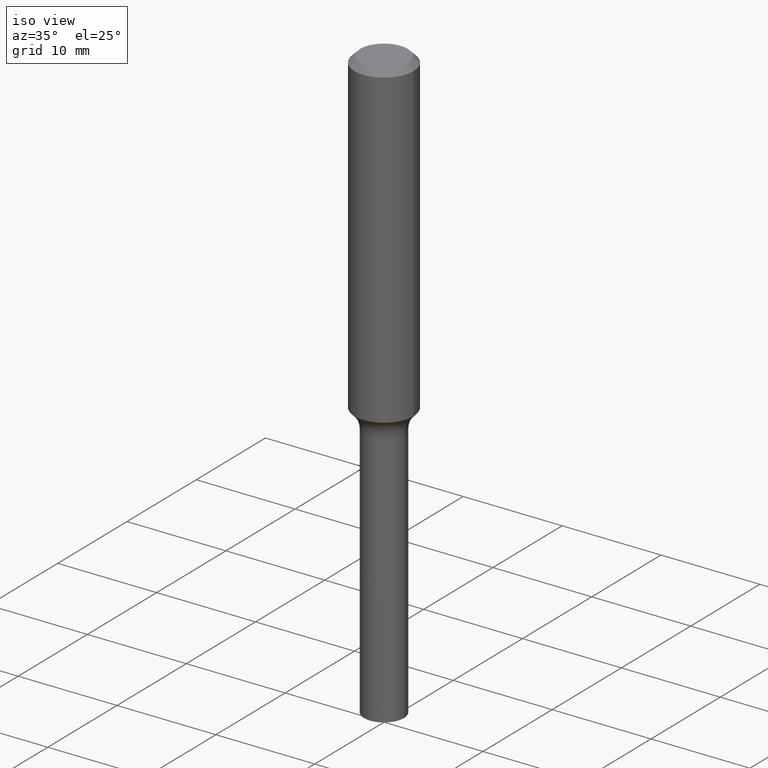
[diagram: clean part render]
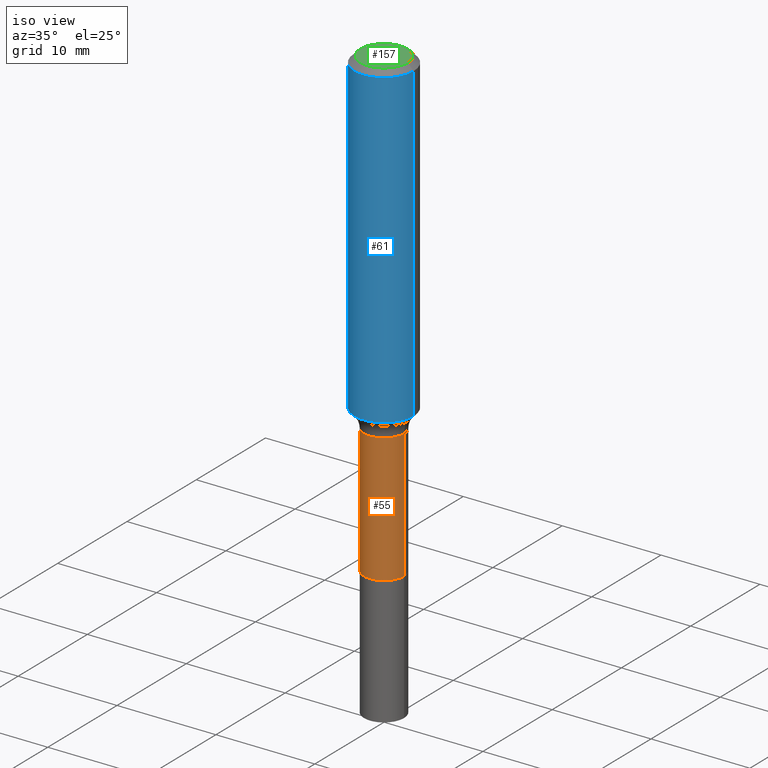
[diagram: same view with three faces highlighted in distinct colors, each labeled with its STEP entity id]
A machine part, iso view with three faces highlighted in distinct colors.
Their STEP definitions:

[orange] entity #55 — the highlighted cylindrical surface (edge-blend (fillet) strip) has radius 2.0193 mm, axis along (-0, 0, 1).
#2 = EDGE_CURVE ( 'NONE', #471, #511, #509, .T. ) ;
#5 = CIRCLE ( 'NONE', #202, 0.07950000000000000122 ) ;
#10 = DIRECTION ( 'NONE',  ( -2.445468806185136597E-29, 3.491481338843145583E-15, 1.000000000000000000 ) ) ;
#18 = EDGE_LOOP ( 'NONE', ( #112, #318, #60, #378 ) ) ;
#45 = FACE_OUTER_BOUND ( 'NONE', #18, .T. ) ;
#48 = DIRECTION ( 'NONE',  ( 1.000000000000000000, -6.982962677686267499E-15, 4.876176775795936353E-29 ) ) ;
#55 = ADVANCED_FACE ( 'NONE', ( #45 ), #208, .T. ) ;
#60 = ORIENTED_EDGE ( 'NONE', *, *, #179, .T. ) ;
#78 = CARTESIAN_POINT ( 'NONE',  ( 0.07950000000000000122, -7.020321528011911342E-15, -1.851700000000000124 ) ) ;
#112 = ORIENTED_EDGE ( 'NONE', *, *, #2, .F. ) ;
#126 = DIRECTION ( 'NONE',  ( -2.445468806185136877E-29, 3.491481338843145188E-15, 1.000000000000000000 ) ) ;
#129 = DIRECTION ( 'NONE',  ( 1.000000000000000000, -6.982962677686272233E-15, 0.000000000000000000 ) ) ;
#139 = CARTESIAN_POINT ( 'NONE',  ( 3.272526356436949336E-29, -4.672300327639896745E-15, -1.338200000000000056 ) ) ;
#143 = LINE ( 'NONE', #424, #200 ) ;
#152 = CARTESIAN_POINT ( 'NONE',  ( -0.07949999999999995959, 5.648814749292793606E-16, -3.910553396752648025E-30 ) ) ;
#171 = DIRECTION ( 'NONE',  ( 1.000000000000000000, -6.982962677686265922E-15, 0.000000000000000000 ) ) ;
#179 = EDGE_CURVE ( 'NONE', #240, #435, #143, .T. ) ;
#182 = VECTOR ( 'NONE', #126, 39.37007874015748143 ) ;
#191 = DIRECTION ( 'NONE',  ( -2.445468806185136877E-29, 3.491481338843145188E-15, 1.000000000000000000 ) ) ;
#200 = VECTOR ( 'NONE', #191, 39.37007874015748143 ) ;
#202 = AXIS2_PLACEMENT_3D ( 'NONE', #341, #10, #171 ) ;
#208 = CYLINDRICAL_SURFACE ( 'NONE', #271, 0.07949999999999995959 ) ;
#215 = DIRECTION ( 'NONE',  ( -2.445468806185136597E-29, 3.491481338843145583E-15, 1.000000000000000000 ) ) ;
#240 = VERTEX_POINT ( 'NONE', #78 ) ;
#271 = AXIS2_PLACEMENT_3D ( 'NONE', #444, #215, #48 ) ;
#272 = AXIS2_PLACEMENT_3D ( 'NONE', #139, #376, #129 ) ;
#318 = ORIENTED_EDGE ( 'NONE', *, *, #442, .T. ) ;
#328 = CARTESIAN_POINT ( 'NONE',  ( -0.07950000000000000122, -5.003856686458594966E-15, -1.851700000000000124 ) ) ;
#339 = CARTESIAN_POINT ( 'NONE',  ( 0.07949999999999993183, -5.227445860515954601E-15, -1.338200000000000056 ) ) ;
#341 = CARTESIAN_POINT ( 'NONE',  ( 4.528274588413018229E-29, -6.465175995135853485E-15, -1.851700000000000124 ) ) ;
#376 = DIRECTION ( 'NONE',  ( -2.445468806185136597E-29, 3.491481338843145583E-15, 1.000000000000000000 ) ) ;
#378 = ORIENTED_EDGE ( 'NONE', *, *, #518, .F. ) ;
#424 = CARTESIAN_POINT ( 'NONE',  ( 0.07949999999999995959, -5.551455328760579550E-16, 3.876560536757767470E-30 ) ) ;
#435 = VERTEX_POINT ( 'NONE', #339 ) ;
#442 = EDGE_CURVE ( 'NONE', #471, #240, #5, .T. ) ;
#444 = CARTESIAN_POINT ( 'NONE',  ( 0.000000000000000000, 0.000000000000000000, 0.000000000000000000 ) ) ;
#449 = CIRCLE ( 'NONE', #272, 0.07949999999999993183 ) ;
#471 = VERTEX_POINT ( 'NONE', #328 ) ;
#485 = CARTESIAN_POINT ( 'NONE',  ( -0.07949999999999993183, -5.003856686458595754E-15, -1.338200000000000056 ) ) ;
#509 = LINE ( 'NONE', #152, #182 ) ;
#511 = VERTEX_POINT ( 'NONE', #485 ) ;
#518 = EDGE_CURVE ( 'NONE', #511, #435, #449, .T. ) ;

[blue] entity #61 — the highlighted cylindrical surface (edge-blend (fillet) strip) has radius 2.9997 mm, axis along (-0, 0, 1).
#28 = CARTESIAN_POINT ( 'NONE',  ( 0.1180999999999999966, -9.071566814582237199E-16, -0.02362000000000014435 ) ) ;
#47 = AXIS2_PLACEMENT_3D ( 'NONE', #453, #220, #336 ) ;
#56 = AXIS2_PLACEMENT_3D ( 'NONE', #288, #172, #95 ) ;
#61 = ADVANCED_FACE ( 'NONE', ( #370 ), #163, .T. ) ;
#89 = EDGE_CURVE ( 'NONE', #238, #305, #404, .T. ) ;
#95 = DIRECTION ( 'NONE',  ( 1.000000000000000000, -6.982962677686266711E-15, 0.000000000000000000 ) ) ;
#107 = ORIENTED_EDGE ( 'NONE', *, *, #89, .F. ) ;
#114 = CARTESIAN_POINT ( 'NONE',  ( 0.1181000000000000660, -8.246878922347485584E-16, 5.758764772215003944E-30 ) ) ;
#124 = DIRECTION ( 'NONE',  ( 1.000000000000000000, -6.982962677686266711E-15, 4.876176775795936353E-29 ) ) ;
#142 = ORIENTED_EDGE ( 'NONE', *, *, #196, .T. ) ;
#153 = CARTESIAN_POINT ( 'NONE',  ( 0.1181000000000001493, -5.242437337790650408E-15, -1.265293729743851792 ) ) ;
#162 = EDGE_LOOP ( 'NONE', ( #357, #185, #142, #107 ) ) ;
#163 = CYLINDRICAL_SURFACE ( 'NONE', #482, 0.1181000000000000660 ) ;
#172 = DIRECTION ( 'NONE',  ( -2.445468806185136597E-29, 3.491481338843145583E-15, 1.000000000000000000 ) ) ;
#175 = CIRCLE ( 'NONE', #47, 0.1181000000000001493 ) ;
#185 = ORIENTED_EDGE ( 'NONE', *, *, #493, .T. ) ;
#196 = EDGE_CURVE ( 'NONE', #270, #305, #276, .T. ) ;
#206 = EDGE_CURVE ( 'NONE', #426, #238, #460, .T. ) ;
#220 = DIRECTION ( 'NONE',  ( -2.445468806185136597E-29, 3.491481338843145583E-15, 1.000000000000000000 ) ) ;
#235 = CARTESIAN_POINT ( 'NONE',  ( -0.1181000000000000660, 8.391509709326787887E-16, -5.809262341591047287E-30 ) ) ;
#238 = VERTEX_POINT ( 'NONE', #355 ) ;
#268 = DIRECTION ( 'NONE',  ( -2.445468806185136877E-29, 3.491481338843145188E-15, 1.000000000000000000 ) ) ;
#270 = VERTEX_POINT ( 'NONE', #153 ) ;
#276 = LINE ( 'NONE', #114, #334 ) ;
#288 = CARTESIAN_POINT ( 'NONE',  ( 5.776197320209328408E-31, -8.246878922347560526E-17, -0.02362000000000014435 ) ) ;
#305 = VERTEX_POINT ( 'NONE', #28 ) ;
#306 = DIRECTION ( 'NONE',  ( -2.445468806185136877E-29, 3.491481338843145188E-15, 1.000000000000000000 ) ) ;
#324 = CARTESIAN_POINT ( 'NONE',  ( 0.000000000000000000, 0.000000000000000000, 0.000000000000000000 ) ) ;
#334 = VECTOR ( 'NONE', #268, 39.37007874015748143 ) ;
#336 = DIRECTION ( 'NONE',  ( 1.000000000000000000, -6.982962677686264344E-15, 0.000000000000000000 ) ) ;
#355 = CARTESIAN_POINT ( 'NONE',  ( -0.1180999999999999966, -1.410958146457008829E-15, -0.02362000000000014435 ) ) ;
#357 = ORIENTED_EDGE ( 'NONE', *, *, #206, .F. ) ;
#370 = FACE_OUTER_BOUND ( 'NONE', #162, .T. ) ;
#404 = CIRCLE ( 'NONE', #56, 0.1180999999999999966 ) ;
#414 = VECTOR ( 'NONE', #306, 39.37007874015748143 ) ;
#426 = VERTEX_POINT ( 'NONE', #445 ) ;
#445 = CARTESIAN_POINT ( 'NONE',  ( -0.1181000000000001493, -3.578598474623221582E-15, -1.265293729743851792 ) ) ;
#448 = DIRECTION ( 'NONE',  ( -2.445468806185136597E-29, 3.491481338843145583E-15, 1.000000000000000000 ) ) ;
#453 = CARTESIAN_POINT ( 'NONE',  ( 3.094236346750236032E-29, -4.417749445555900568E-15, -1.265293729743851792 ) ) ;
#460 = LINE ( 'NONE', #235, #414 ) ;
#482 = AXIS2_PLACEMENT_3D ( 'NONE', #324, #448, #124 ) ;
#493 = EDGE_CURVE ( 'NONE', #426, #270, #175, .T. ) ;

[green] entity #157 — the highlighted planar face has unit normal (0, -0, -1).
#30 = CARTESIAN_POINT ( 'NONE',  ( 3.772893820736570314E-46, -5.386692455541008845E-32, -1.542810037565835988E-17 ) ) ;
#82 = VERTEX_POINT ( 'NONE', #90 ) ;
#90 = CARTESIAN_POINT ( 'NONE',  ( -0.09447999999999998066, 7.009847083995354710E-16, -3.085620075132147757E-17 ) ) ;
#92 = AXIS2_PLACEMENT_3D ( 'NONE', #30, #387, #463 ) ;
#157 = ADVANCED_FACE ( 'NONE', ( #327 ), #204, .F. ) ;
#160 = CIRCLE ( 'NONE', #320, 0.09447999999999998066 ) ;
#168 = DIRECTION ( 'NONE',  ( 1.000000000000000000, -6.982962677686267499E-15, 4.875432709231658792E-29 ) ) ;
#183 = DIRECTION ( 'NONE',  ( 1.000000000000000000, -6.982962677686267499E-15, 4.875432709231658792E-29 ) ) ;
#204 = PLANE ( 'NONE',  #92 ) ;
#245 = AXIS2_PLACEMENT_3D ( 'NONE', #351, #392, #183 ) ;
#295 = CARTESIAN_POINT ( 'NONE',  ( 7.545787641473140628E-46, -1.077338491108201769E-31, -3.085620075131671975E-17 ) ) ;
#320 = AXIS2_PLACEMENT_3D ( 'NONE', #295, #415, #168 ) ;
#322 = EDGE_CURVE ( 'NONE', #498, #82, #359, .T. ) ;
#327 = FACE_OUTER_BOUND ( 'NONE', #506, .T. ) ;
#351 = CARTESIAN_POINT ( 'NONE',  ( 7.545787641473140628E-46, -1.077338491108201769E-31, -3.085620075131671975E-17 ) ) ;
#359 = CIRCLE ( 'NONE', #245, 0.09447999999999998066 ) ;
#387 = DIRECTION ( 'NONE',  ( 2.438088387897960049E-29, -3.491481338843145188E-15, -1.000000000000000000 ) ) ;
#392 = DIRECTION ( 'NONE',  ( -2.445468806185136597E-29, 3.491481338843145583E-15, 1.000000000000000000 ) ) ;
#415 = DIRECTION ( 'NONE',  ( -2.445468806185136597E-29, 3.491481338843145583E-15, 1.000000000000000000 ) ) ;
#450 = CARTESIAN_POINT ( 'NONE',  ( 0.09447999999999998066, -7.704367267948738690E-16, -3.085620075131172158E-17 ) ) ;
#458 = EDGE_CURVE ( 'NONE', #82, #498, #160, .T. ) ;
#462 = ORIENTED_EDGE ( 'NONE', *, *, #458, .T. ) ;
#463 = DIRECTION ( 'NONE',  ( -1.000000000000000000, 6.982962677686265922E-15, -4.876176775795935793E-29 ) ) ;
#469 = ORIENTED_EDGE ( 'NONE', *, *, #322, .T. ) ;
#498 = VERTEX_POINT ( 'NONE', #450 ) ;
#506 = EDGE_LOOP ( 'NONE', ( #462, #469 ) ) ;